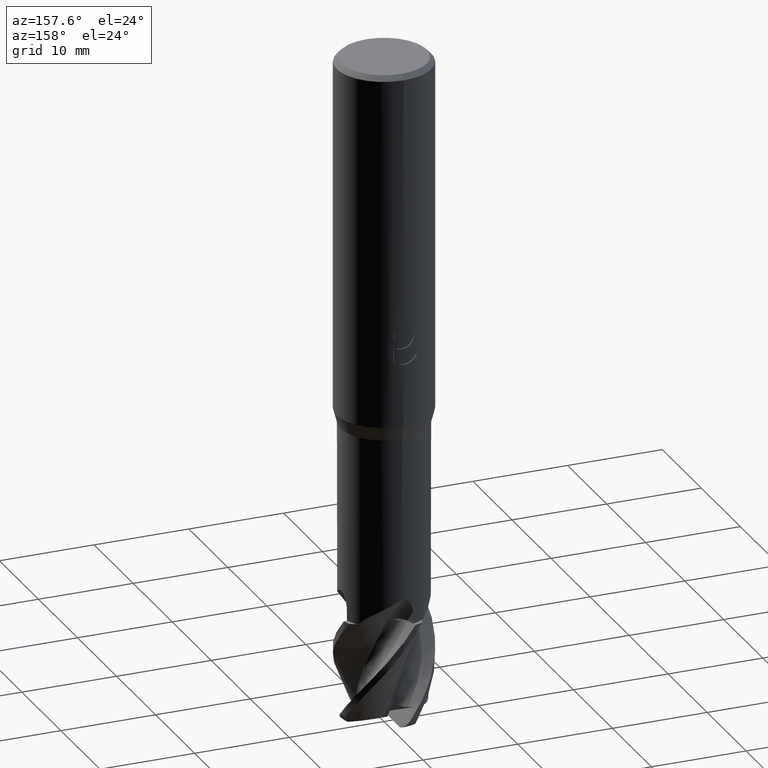
[diagram: clean part render]
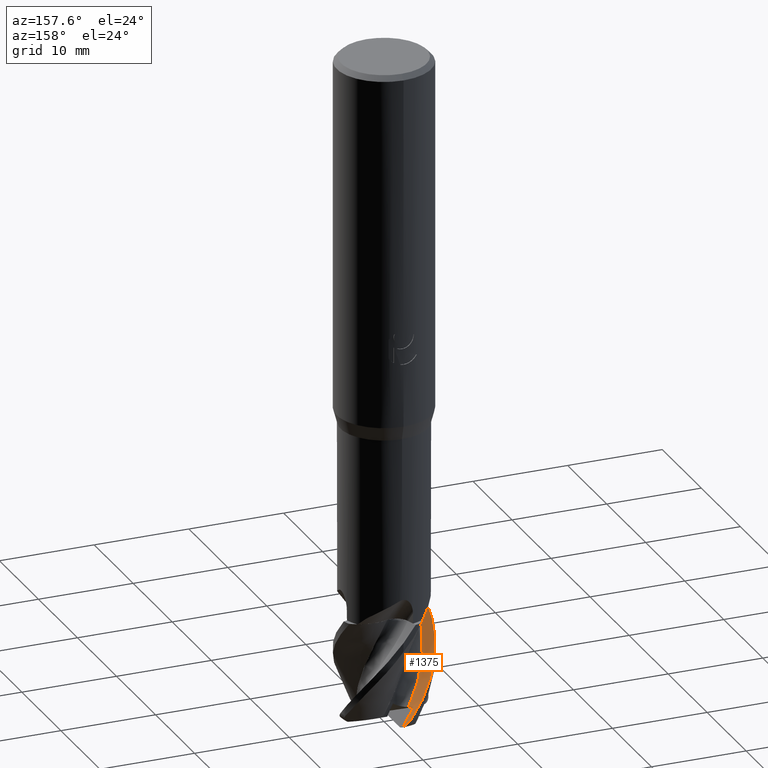
[diagram: same view with one face highlighted and labeled with its STEP entity id]
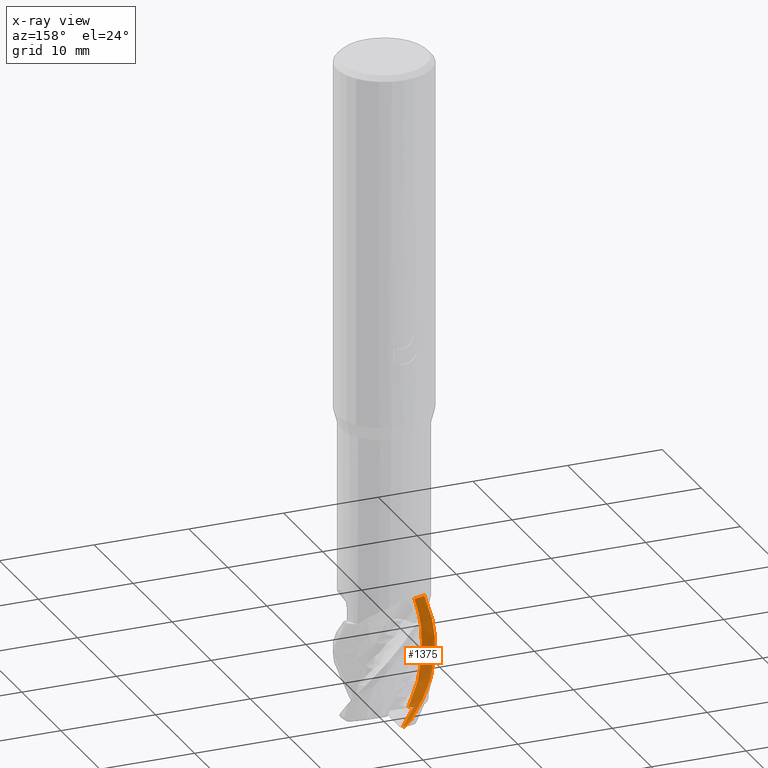
[diagram: x-ray of the same camera — body ghosted, the highlighted face saturated]
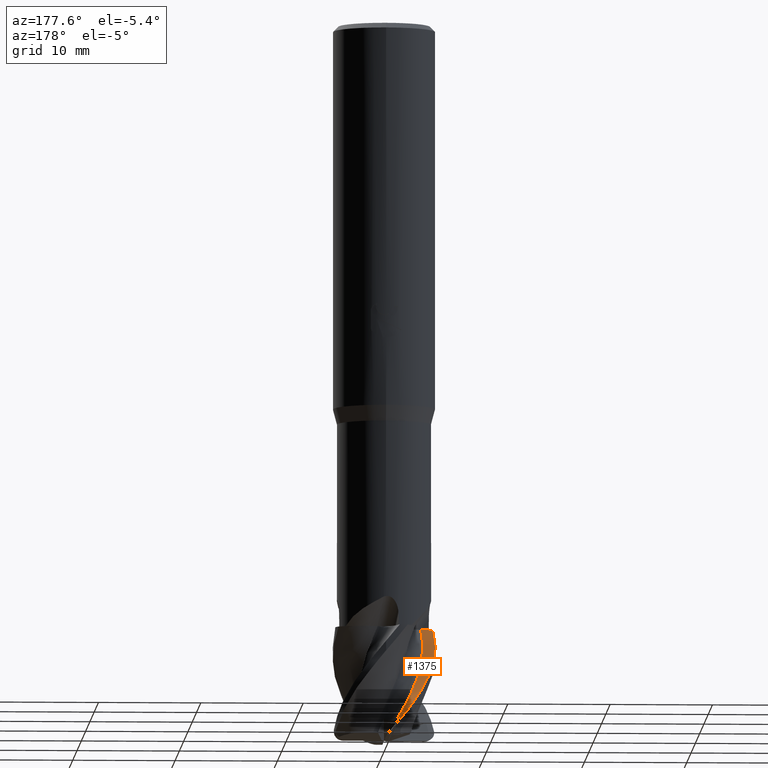
[diagram: same view with one face highlighted and labeled with its STEP entity id]
A machine part, auxiliary view. The second image highlights one B-rep face of the part: STEP entity #1375.
The next image is the same camera in x-ray: the body ghosted, the highlighted face saturated — about 0% of this face is hidden behind the body in this view.
A second angle (auxiliary view) of the same face is appended — the face is thin or edge-on in the first view.
In plain terms, the highlighted face is a freeform B-spline surface patch.
Its self-contained STEP definition (entity closure, byte-faithful):
#559=EDGE_CURVE('',#1419,#1235,#1543,.T.);
#575=VERTEX_POINT('',#1560);
#589=EDGE_CURVE('',#1253,#1343,#1576,.T.);
#831=EDGE_CURVE('',#1363,#575,#1843,.T.);
#879=EDGE_CURVE('',#1235,#1363,#1893,.T.);
#1041=EDGE_CURVE('',#1343,#1419,#2074,.T.);
#1235=VERTEX_POINT('',#2280);
#1253=VERTEX_POINT('',#2299);
#1343=VERTEX_POINT('',#2395);
#1363=VERTEX_POINT('',#2416);
#1375=ADVANCED_FACE('',(#2429),#2430,.T.);
#1409=EDGE_CURVE('',#575,#1253,#2466,.T.);
#1419=VERTEX_POINT('',#2478);
#1543=B_SPLINE_CURVE_WITH_KNOTS('',3,(#2727,#2728,#2729,#2730,#2731,#2732),.UNSPECIFIED.,.F.,.F.,(4,2,4),(0.0,0.751794072931689,1.5104230108436),.UNSPECIFIED.);
#1560=CARTESIAN_POINT('',(-4.81221548806411,-1.35704904348955,-59.0));
#1576=B_SPLINE_CURVE_WITH_KNOTS('',3,(#3035,#3036,#3037,#3038,#3039,#3040,#3041,#3042,#3043,#3044,#3045,#3046,#3047,#3048,#3049,#3050),.UNSPECIFIED.,.F.,.F.,(4,2,2,2,2,2,2,4),(0.0,0.0671660512695453,0.162370546002259,0.353470234615446,0.617416143831195,0.997652059389528,1.34689019427082,1.6848377944745),.UNSPECIFIED.);
#1843=B_SPLINE_CURVE_WITH_KNOTS('',3,(#4877,#4878,#4879,#4880,#4881,#4882),.UNSPECIFIED.,.F.,.F.,(4,2,4),(0.0,0.718749978449483,1.43749995690222),.UNSPECIFIED.);
#1893=B_SPLINE_CURVE_WITH_KNOTS('',3,(#5051,#5052,#5053,#5054,#5055,#5056,#5057,#5058,#5059,#5060,#5061,#5062,#5063,#5064,#5065,#5066,#5067,#5068,#5069,#5070,#5071,#5072,#5073,#5074,#5075,#5076,#5077,#5078,#5079,#5080,#5081,#5082,#5083,#5084,#5085,#5086,#5087,#5088,#5089,#5090),.UNSPECIFIED.,.F.,.F.,(4,1,2,2,1,2,1,1,2,1,1,2,1,1,1,2,1,1,2,1,1,2,1,1,1,2,1,1,4),(0.0,0.486072077387521,0.972144154775041,1.94428830955008,2.91643246432512,3.88857661910017,4.86072077387521,6.31893700603777,7.77715323820033,9.23536947036289,10.6935857025255,11.6657298573005,12.6378740120755,13.6100181668506,14.5821623216256,15.5543064764007,16.5264506311757,17.9846668633383,19.4428830955008,20.9010993276634,22.359315559826,23.331459714601,24.303603869376,25.2757480241511,26.2478921789261,27.2200363337012,28.1921804884762,29.6503967206388,31.1086129528013),.UNSPECIFIED.);
#2074=B_SPLINE_CURVE_WITH_KNOTS('',3,(#6422,#6423,#6424,#6425,#6426,#6427,#6428,#6429,#6430,#6431,#6432,#6433,#6434,#6435,#6436,#6437,#6438,#6439,#6440,#6441,#6442,#6443),.UNSPECIFIED.,.F.,.F.,(4,2,2,2,2,2,2,2,2,2,4),(0.0,0.392635130041156,0.729514629619427,1.04073542299758,1.50427848265847,1.95920149699613,2.41559836698189,3.21252357299799,3.52250130577971,4.19197207264999,5.8238102415896),.UNSPECIFIED.);
#2280=CARTESIAN_POINT('',(-1.09520121686868,3.60050851810042,-68.2262283134295));
#2299=CARTESIAN_POINT('',(-0.815956067990963,4.93297229823042,-69.0));
#2395=CARTESIAN_POINT('',(-0.123108119902427,4.57289036489368,-69.8184714646196));
#2416=CARTESIAN_POINT('',(-3.62420799166102,-1.01487390091683,-59.0));
#2429=FACE_OUTER_BOUND('',#8351,.T.);
#2430=B_SPLINE_SURFACE_WITH_KNOTS('',3,3,((#8352,#8353,#8354,#8355,#8356,#8357,#8358,#8359,#8360,#8361,#8362,#8363,#8364,#8365,#8366,#8367,#8368,#8369,#8370,#8371,#8372,#8373,#8374,#8375,#8376,#8377,#8378,#8379,#8380,#8381,#8382,#8383,#8384,#8385,#8386,#8387,#8388,#8389,#8390,#8391),(#8392,#8393,#8394,#8395,#8396,#8397,#8398,#8399,#8400,#8401,#8402,#8403,#8404,#8405,#8406,#8407,#8408,#8409,#8410,#8411,#8412,#8413,#8414,#8415,#8416,#8417,#8418,#8419,#8420,#8421,#8422,#8423,#8424,#8425,#8426,#8427,#8428,#8429,#8430,#8431),(#8432,#8433,#8434,#8435,#8436,#8437,#8438,#8439,#8440,#8441,#8442,#8443,#8444,#8445,#8446,#8447,#8448,#8449,#8450,#8451,#8452,#8453,#8454,#8455,#8456,#8457,#8458,#8459,#8460,#8461,#8462,#8463,#8464,#8465,#8466,#8467,#8468,#8469,#8470,#8471),(#8472,#8473,#8474,#8475,#8476,#8477,#8478,#8479,#8480,#8481,#8482,#8483,#8484,#8485,#8486,#8487,#8488,#8489,#8490,#8491,#8492,#8493,#8494,#8495,#8496,#8497,#8498,#8499,#8500,#8501,#8502,#8503,#8504,#8505,#8506,#8507,#8508,#8509,#8510,#8511)),.UNSPECIFIED.,.F.,.F.,.F.,(4,4),(4,1,2,2,1,2,1,1,2,1,1,2,1,1,1,2,1,1,2,1,1,2,1,1,1,2,1,1,4),(0.0,1.4375),(0.0,0.486072077387521,0.972144154775041,1.94428830955008,2.91643246432512,3.88857661910017,4.86072077387521,6.31893700603777,7.77715323820033,9.23536947036289,10.6935857025255,11.6657298573005,12.6378740120755,13.6100181668506,14.5821623216256,15.5543064764007,16.5264506311757,17.9846668633383,19.4428830955008,20.9010993276634,22.359315559826,23.331459714601,24.303603869376,25.2757480241511,26.2478921789261,27.2200363337012,28.1921804884762,29.6503967206388,31.1086129528013),.UNSPECIFIED.);
#2466=B_SPLINE_CURVE_WITH_KNOTS('',3,(#8642,#8643,#8644,#8645,#8646,#8647,#8648,#8649,#8650,#8651,#8652,#8653,#8654,#8655,#8656,#8657),.UNSPECIFIED.,.F.,.F.,(4,2,2,2,2,2,2,4),(0.0,2.08918083368579,3.472125765009,4.52503882656082,5.20180950697412,6.45962798724344,7.09419798797232,7.74034989056462),.UNSPECIFIED.);
#2478=CARTESIAN_POINT('',(-1.40208119094292,4.15151579690603,-68.0559665281804));
#2727=CARTESIAN_POINT('',(-1.83372258085381,4.86688129679418,-67.8590559295548));
#2728=CARTESIAN_POINT('',(-1.70365772834864,4.65947276021985,-67.9125741777255));
#2729=CARTESIAN_POINT('',(-1.57653859564185,4.45031451242847,-67.9694812878307));
#2730=CARTESIAN_POINT('',(-1.32989749919156,4.02858253436372,-68.0912526135801));
#2731=CARTESIAN_POINT('',(-1.20981511212483,3.81490138597409,-68.1564999603392));
#2732=CARTESIAN_POINT('',(-1.09520121692853,3.60050851808144,-68.2262283134866));
#3035=CARTESIAN_POINT('',(-0.816411568843245,4.93289678177411,-68.999453992404));
#3036=CARTESIAN_POINT('',(-0.802150490174869,4.93526650117915,-69.0165495832246));
#3037=CARTESIAN_POINT('',(-0.787814119449662,4.93714078266966,-69.033653130034));
#3038=CARTESIAN_POINT('',(-0.753029614041781,4.9404624697607,-69.0749853946924));
#3039=CARTESIAN_POINT('',(-0.732523584756293,4.94140551875136,-69.0992137794731));
#3040=CARTESIAN_POINT('',(-0.670720045563193,4.94117495250644,-69.1719320923907));
#3041=CARTESIAN_POINT('',(-0.629252257246854,4.93691233939706,-69.2203177866183));
#3042=CARTESIAN_POINT('',(-0.531283868387751,4.91664350857127,-69.3343107627327));
#3043=CARTESIAN_POINT('',(-0.474999903513409,4.89676207895779,-69.3995500626918));
#3044=CARTESIAN_POINT('',(-0.342764931162667,4.8274255457284,-69.5537140994057));
#3045=CARTESIAN_POINT('',(-0.269143259362154,4.76880399006796,-69.6404182602025));
#3046=CARTESIAN_POINT('',(-0.146511472595121,4.62114500598103,-69.7887357389997));
#3047=CARTESIAN_POINT('',(-0.0967796020426928,4.53583780069105,-69.8509251862515));
#3048=CARTESIAN_POINT('',(-0.0235127627432397,4.34177799707788,-69.9458419822675));
#3049=CARTESIAN_POINT('',(-0.000345314060312992,4.23688712957753,-69.9779295217924));
#3050=CARTESIAN_POINT('',(0.00972502810385703,4.12614972778561,-69.9920097552712));
#4877=CARTESIAN_POINT('',(-3.62420799163334,-1.01487390101293,-59.0));
#4878=CARTESIAN_POINT('',(-3.85443200048723,-1.0811843520464,-59.0));
#4879=CARTESIAN_POINT('',(-4.08465605878453,-1.14749463141694,-59.0));
#4880=CARTESIAN_POINT('',(-4.54510427426675,-1.28011484683049,-59.0));
#4881=CARTESIAN_POINT('',(-4.7753284314518,-1.34642478287352,-59.0));
#4882=CARTESIAN_POINT('',(-5.00555263808015,-1.41273454725165,-59.0));
#5051=CARTESIAN_POINT('',(3.75846504508571,-0.174203199938611,-80.0));
#5052=CARTESIAN_POINT('',(3.75828084396497,-0.194815828982336,-79.8385435911017));
#5053=CARTESIAN_POINT('',(3.76196984713355,-0.165571341920701,-79.5155947887541));
#5054=CARTESIAN_POINT('',(3.7666735664887,0.00715994400538414,-79.1926221376497));
#5055=CARTESIAN_POINT('',(3.75288079252065,0.373242750135397,-78.708257841377));
#5056=CARTESIAN_POINT('',(3.72163332523226,0.595886894987135,-78.3853736073002));
#5057=CARTESIAN_POINT('',(3.63332376225144,1.00197660502865,-77.7395577774699));
#5058=CARTESIAN_POINT('',(3.51319479512196,1.39449817376395,-77.0937365673818));
#5059=CARTESIAN_POINT('',(3.3309111892048,1.76383199632402,-76.4478933996483));
#5060=CARTESIAN_POINT('',(3.11507099365313,2.12199486650897,-75.8020494895554));
#5061=CARTESIAN_POINT('',(2.81546299580733,2.53554345025552,-74.9947648198802));
#5062=CARTESIAN_POINT('',(2.23301877828794,3.07370399785199,-73.7030881898479));
#5063=CARTESIAN_POINT('',(1.69677173642203,3.37451585109877,-72.7342983844305));
#5064=CARTESIAN_POINT('',(1.10349011943726,3.61204345334899,-71.7655583624836));
#5065=CARTESIAN_POINT('',(0.508402846864783,3.76483620152927,-70.7968546531817));
#5066=CARTESIAN_POINT('',(-0.288244513120189,3.77850799426797,-69.5051778586552));
#5067=CARTESIAN_POINT('',(-0.796842744180249,3.68429071257042,-68.697860988868));
#5068=CARTESIAN_POINT('',(-1.20642903519842,3.57105725562894,-68.0520249509301));
#5069=CARTESIAN_POINT('',(-1.59455920203675,3.42694477358397,-67.406207559231));
#5070=CARTESIAN_POINT('',(-2.11724226475429,3.13074313373759,-66.437471766184));
#5071=CARTESIAN_POINT('',(-2.58687566175257,2.75611336729584,-65.4687043346982));
#5072=CARTESIAN_POINT('',(-2.86507567900893,2.44954055121123,-64.8228526770956));
#5073=CARTESIAN_POINT('',(-3.12244677203907,2.11145446474027,-64.1770194526284));
#5074=CARTESIAN_POINT('',(-3.39925918896,1.67442103711186,-63.3697511381561));
#5075=CARTESIAN_POINT('',(-3.6835605775205,0.930038475036886,-62.0780979709974));
#5076=CARTESIAN_POINT('',(-3.76326416249981,0.321691571665687,-61.1093091759078));
#5077=CARTESIAN_POINT('',(-3.76356758007846,-0.315658776096099,-60.1405577615513));
#5078=CARTESIAN_POINT('',(-3.68486331972891,-0.924321232202322,-59.1718445364835));
#5079=CARTESIAN_POINT('',(-3.40184562993813,-1.66969704634569,-57.8801647859864));
#5080=CARTESIAN_POINT('',(-3.12548640299466,-2.10718969193942,-57.0728516559468));
#5081=CARTESIAN_POINT('',(-2.86838015791589,-2.44546642251084,-56.4270201653886));
#5082=CARTESIAN_POINT('',(-2.59069588735715,-2.7522208213772,-55.7812054403743));
#5083=CARTESIAN_POINT('',(-2.12200456786792,-3.12751070811321,-54.8124680501343));
#5084=CARTESIAN_POINT('',(-1.59970770766387,-3.42479560810431,-53.8436942758432));
#5085=CARTESIAN_POINT('',(-1.21097708700197,-3.56968096790445,-53.1978362961314));
#5086=CARTESIAN_POINT('',(-0.80017535485013,-3.68345829294497,-52.5519965372961));
#5087=CARTESIAN_POINT('',(-0.290242564565987,-3.77824449191857,-51.7447273087484));
#5088=CARTESIAN_POINT('',(0.504514457398097,-3.7651486711172,-50.453096128095));
#5089=CARTESIAN_POINT('',(1.09183690402776,-3.61542374616111,-49.4843328363915));
#5090=CARTESIAN_POINT('',(1.38324993206656,-3.50007952658442,-48.9999676653261));
#6422=CARTESIAN_POINT('',(-0.00576500567643763,5.09905035243371,-69.9789224974719));
#6423=CARTESIAN_POINT('',(-0.0131760867436232,4.96875631350061,-69.9690387340991));
#6424=CARTESIAN_POINT('',(-0.0226691296144208,4.87283857424517,-69.9561956254412));
#6425=CARTESIAN_POINT('',(-0.0463080655856725,4.73544046972513,-69.9239533874874));
#6426=CARTESIAN_POINT('',(-0.0599056897622719,4.68639370664801,-69.9053297526805));
#6427=CARTESIAN_POINT('',(-0.0934815930657045,4.61040523905726,-69.859227216948));
#6428=CARTESIAN_POINT('',(-0.11287022337485,4.58221654359397,-69.8325645996773));
#6429=CARTESIAN_POINT('',(-0.170151971269038,4.52462033403852,-69.7537264653086));
#6430=CARTESIAN_POINT('',(-0.214749741064667,4.49905889409404,-69.6922959285542));
#6431=CARTESIAN_POINT('',(-0.333273825069844,4.45377384213054,-69.5289783775392));
#6432=CARTESIAN_POINT('',(-0.40571500486099,4.43428454441782,-69.429138627936));
#6433=CARTESIAN_POINT('',(-0.582186153343769,4.39000605285017,-69.1859146509467));
#6434=CARTESIAN_POINT('',(-0.702100387210705,4.3612663103217,-69.0206376094949));
#6435=CARTESIAN_POINT('',(-1.03398825527642,4.27068298729967,-68.5632270524738));
#6436=CARTESIAN_POINT('',(-1.12415409449773,4.23529564973311,-68.4389875093934));
#6437=CARTESIAN_POINT('',(-1.31386447548262,4.17655633067287,-68.1775450424082));
#6438=CARTESIAN_POINT('',(-1.36839596393047,4.16086094770048,-68.102391392209));
#6439=CARTESIAN_POINT('',(-1.53576439660063,4.114308275841,-67.8717251037194));
#6440=CARTESIAN_POINT('',(-1.65328596350995,4.08397190921887,-67.7097514473234));
#6441=CARTESIAN_POINT('',(-2.10055664202938,3.96337435474074,-67.0933155589605));
#6442=CARTESIAN_POINT('',(-2.47243422205053,3.85525339563391,-66.5808079078443));
#6443=CARTESIAN_POINT('',(-2.88022848049288,3.67362354958079,-66.0189636168904));
#8351=EDGE_LOOP('',(#9945,#9946,#9947,#9948,#9949,#9950));
#8352=CARTESIAN_POINT('',(3.75846504509034,-0.174203199838719,-80.0));
#8353=CARTESIAN_POINT('',(3.75828084397247,-0.194815828882577,-79.8385435911017));
#8354=CARTESIAN_POINT('',(3.76196984713581,-0.16557134182058,-79.5155947887541));
#8355=CARTESIAN_POINT('',(3.76667356648719,0.00715994410524393,-79.1926221376497));
#8356=CARTESIAN_POINT('',(3.7528807925105,0.373242750235387,-78.7082578413771));
#8357=CARTESIAN_POINT('',(3.72163332521614,0.595886895086581,-78.3853736073002));
#8358=CARTESIAN_POINT('',(3.63332376222362,1.00197660512431,-77.7395577774699));
#8359=CARTESIAN_POINT('',(3.51319479508455,1.39449817385675,-77.0937365673818));
#8360=CARTESIAN_POINT('',(3.33091118915707,1.7638319964134,-76.4478933996483));
#8361=CARTESIAN_POINT('',(3.11507099359638,2.12199486659013,-75.8020494895554));
#8362=CARTESIAN_POINT('',(2.81546299573929,2.53554345033084,-74.9947648198817));
#8363=CARTESIAN_POINT('',(2.23301877820793,3.07370399790857,-73.7030881898479));
#8364=CARTESIAN_POINT('',(1.69677173633276,3.37451585114806,-72.7342983844305));
#8365=CARTESIAN_POINT('',(1.10349011934032,3.6120434533727,-71.7655583624837));
#8366=CARTESIAN_POINT('',(0.508402846765522,3.76483620153985,-70.7968546531773));
#8367=CARTESIAN_POINT('',(-0.288244513220249,3.77850799426012,-69.5051778586552));
#8368=CARTESIAN_POINT('',(-0.796842744278461,3.68429071254605,-68.697860988868));
#8369=CARTESIAN_POINT('',(-1.20642903529259,3.57105725559862,-68.0520249509301));
#8370=CARTESIAN_POINT('',(-1.59455920212795,3.42694477353899,-67.4062075592281));
#8371=CARTESIAN_POINT('',(-2.11724226483658,3.13074313368232,-66.4374717661869));
#8372=CARTESIAN_POINT('',(-2.58687566182456,2.75611336722595,-65.4687043346982));
#8373=CARTESIAN_POINT('',(-2.86507567907441,2.44954055113725,-64.8228526771014));
#8374=CARTESIAN_POINT('',(-3.12244677209358,2.11145446465426,-64.1770194526226));
#8375=CARTESIAN_POINT('',(-3.39925918900721,1.67442103702348,-63.3697511381604));
#8376=CARTESIAN_POINT('',(-3.68356057754395,0.930038474937486,-62.0780979709888));
#8377=CARTESIAN_POINT('',(-3.76326416251208,0.321691571566154,-61.1093091759078));
#8378=CARTESIAN_POINT('',(-3.76356758006484,-0.315658776196562,-60.1405577615513));
#8379=CARTESIAN_POINT('',(-3.68486331970501,-0.924321232298672,-59.1718445364921));
#8380=CARTESIAN_POINT('',(-3.40184562989222,-1.66969704643482,-57.880164785972));
#8381=CARTESIAN_POINT('',(-3.12548640293953,-2.10718969202264,-57.0728516559584));
#8382=CARTESIAN_POINT('',(-2.86838015784886,-2.44546642258597,-56.4270201653771));
#8383=CARTESIAN_POINT('',(-2.59069588728419,-2.75222082144523,-55.7812054403743));
#8384=CARTESIAN_POINT('',(-2.12200456778515,-3.1275107081701,-54.8124680501401));
#8385=CARTESIAN_POINT('',(-1.59970770757251,-3.42479560814656,-53.843694275849));
#8386=CARTESIAN_POINT('',(-1.21097708690711,-3.56968096793614,-53.1978362961315));
#8387=CARTESIAN_POINT('',(-0.800175354751865,-3.68345829296529,-52.5519965372962));
#8388=CARTESIAN_POINT('',(-0.290242564466049,-3.77824449192404,-51.7447273087484));
#8389=CARTESIAN_POINT('',(0.504514457497456,-3.76514867110488,-50.453096128095));
#8390=CARTESIAN_POINT('',(1.09183690412458,-3.61542374612813,-49.4843328363915));
#8391=CARTESIAN_POINT('',(1.38324993215926,-3.50007952654693,-48.9999676653261));
#8392=CARTESIAN_POINT('',(4.23711784706853,-0.196388546440662,-80.0));
#8393=CARTESIAN_POINT('',(4.23689693071939,-0.217793015271472,-79.8385434112798));
#8394=CARTESIAN_POINT('',(4.24097623200749,-0.182210614560506,-79.5155909077038));
#8395=CARTESIAN_POINT('',(4.24604753622213,0.0129748125403123,-79.1926123929781));
#8396=CARTESIAN_POINT('',(4.23024585986805,0.424745262034449,-78.708249671467));
#8397=CARTESIAN_POINT('',(4.19489150332128,0.675413845647528,-78.3853689607953));
#8398=CARTESIAN_POINT('',(4.09498088080885,1.13301120315102,-77.7395549858565));
#8399=CARTESIAN_POINT('',(3.95918897967333,1.575380477326,-77.0937351567108));
#8400=CARTESIAN_POINT('',(3.75335539074992,1.99153020743303,-76.4478910095793));
#8401=CARTESIAN_POINT('',(3.50977809338173,2.39496274029043,-75.8020460099961));
#8402=CARTESIAN_POINT('',(3.17162943995577,2.86089583448422,-74.9947622227238));
#8403=CARTESIAN_POINT('',(2.51417588275508,3.46728775813331,-73.703084542261));
#8404=CARTESIAN_POINT('',(1.90934199650551,3.80585443834333,-72.7342903037997));
#8405=CARTESIAN_POINT('',(1.24069854623037,4.07292549339981,-71.7655514402981));
#8406=CARTESIAN_POINT('',(0.569683068778965,4.24463925218252,-70.7968530225347));
#8407=CARTESIAN_POINT('',(-0.328787902070278,4.2592555947592,-69.5051751530881));
#8408=CARTESIAN_POINT('',(-0.901959203934158,4.15256019233341,-68.6978555414452));
#8409=CARTESIAN_POINT('',(-1.36333977723918,4.0246036594246,-68.052019227687));
#8410=CARTESIAN_POINT('',(-1.80068372492346,3.86181242767673,-67.4062036968905));
#8411=CARTESIAN_POINT('',(-2.38979795236565,3.52729257385107,-66.4374695367557));
#8412=CARTESIAN_POINT('',(-2.91900564955897,3.10437541237502,-65.4687002418721));
#8413=CARTESIAN_POINT('',(-3.23227507711429,2.75855541024194,-64.8228465356009));
#8414=CARTESIAN_POINT('',(-3.52194702847926,2.37739561911068,-64.1770134214503));
#8415=CARTESIAN_POINT('',(-3.83355425163418,1.88454341328809,-63.3697477303954));
#8416=CARTESIAN_POINT('',(-4.15345750799292,1.04475362277497,-62.078096240015));
#8417=CARTESIAN_POINT('',(-4.24269276214609,0.358836556182726,-61.1093030729608));
#8418=CARTESIAN_POINT('',(-4.24245049318529,-0.359270766187467,-60.1405516586043));
#8419=CARTESIAN_POINT('',(-4.15316758838559,-1.04539170112553,-59.1718425208844));
#8420=CARTESIAN_POINT('',(-3.83323414197987,-1.88572913338312,-57.8801614819901));
#8421=CARTESIAN_POINT('',(-3.5213110910708,-2.3785721103074,-57.0728459370522));
#8422=CARTESIAN_POINT('',(-3.23131663834916,-2.75947640827662,-56.4270147774553));
#8423=CARTESIAN_POINT('',(-2.91804292871627,-3.10497936227078,-55.7812021773007));
#8424=CARTESIAN_POINT('',(-2.38915242503722,-3.52772230530912,-54.8124663334913));
#8425=CARTESIAN_POINT('',(-1.79989269648105,-3.86243316014844,-53.8436899435083));
#8426=CARTESIAN_POINT('',(-1.36161409064371,-4.02535423517262,-53.1978291349811));
#8427=CARTESIAN_POINT('',(-0.898679507110052,-4.15316681823076,-52.5519887141771));
#8428=CARTESIAN_POINT('',(-0.323852273470528,-4.2595356095244,-51.7447218548197));
#8429=CARTESIAN_POINT('',(0.572480591073314,-4.24399098795883,-50.4530942780159));
#8430=CARTESIAN_POINT('',(1.23457296609401,-4.0745644910643,-49.4843287050234));
#8431=CARTESIAN_POINT('',(1.56287673483644,-3.94430346353366,-48.9999640304345));
#8432=CARTESIAN_POINT('',(4.71577064904369,-0.218573893042266,-80.0));
#8433=CARTESIAN_POINT('',(4.71551305070448,-0.240770202869072,-79.8385432314612));
#8434=CARTESIAN_POINT('',(4.71998260087312,-0.198849885567519,-79.5155870257968));
#8435=CARTESIAN_POINT('',(4.72542150472428,0.0187896787202619,-79.1926026500171));
#8436=CARTESIAN_POINT('',(4.7076109297269,0.476247778339502,-78.7082414981376));
#8437=CARTESIAN_POINT('',(4.66814961834947,0.754940795732625,-78.3853643137676));
#8438=CARTESIAN_POINT('',(4.55663806245962,1.26404580165561,-77.7395521947636));
#8439=CARTESIAN_POINT('',(4.40518312073783,1.75626277116104,-77.0937337469736));
#8440=CARTESIAN_POINT('',(4.1757996162975,2.21922843725227,-76.447888617119));
#8441=CARTESIAN_POINT('',(3.90448516922272,2.6679305952055,-75.8020425328263));
#8442=CARTESIAN_POINT('',(3.52779590226391,3.18624823253395,-74.9947596297861));
#8443=CARTESIAN_POINT('',(2.79533300854018,3.86087153072606,-73.7030809080094));
#8444=CARTESIAN_POINT('',(2.1219122523093,4.23719300678502,-72.7342822082122));
#8445=CARTESIAN_POINT('',(1.37790697748536,4.53380755216227,-71.7655445330654));
#8446=CARTESIAN_POINT('',(0.630963292461658,4.72444226825171,-70.7968513478725));
#8447=CARTESIAN_POINT('',(-0.369331290993843,4.7400032004646,-69.5051724831968));
#8448=CARTESIAN_POINT('',(-1.00707566341967,4.62082965840991,-68.6978500620949));
#8449=CARTESIAN_POINT('',(-1.52025051935779,4.47815007694729,-68.0520135363762));
#8450=CARTESIAN_POINT('',(-2.0068082457703,4.29668006024405,-67.4061998167019));
#8451=CARTESIAN_POINT('',(-2.6623536355913,3.92384201842457,-66.437467344654));
#8452=CARTESIAN_POINT('',(-3.25113564434639,3.45263745691584,-65.4686961256812));
#8453=CARTESIAN_POINT('',(-3.59947446480024,3.06757029996033,-64.8228404445839));
#8454=CARTESIAN_POINT('',(-3.92144729521872,2.64333674296205,-64.1770073398159));
#8455=CARTESIAN_POINT('',(-4.26784931040236,2.09466581602282,-63.3697443778828));
#8456=CARTESIAN_POINT('',(-4.62335447248502,1.15946876216993,-62.0780945030867));
#8457=CARTESIAN_POINT('',(-4.72212132411979,0.395981540794911,-61.1092970323343));
#8458=CARTESIAN_POINT('',(-4.72133344395434,-0.402882756176963,-60.140545493355));
#8459=CARTESIAN_POINT('',(-4.62147186832592,-1.16646215553436,-59.1718405900653));
#8460=CARTESIAN_POINT('',(-4.2646226685472,-2.10176121397393,-57.8801580962191));
#8461=CARTESIAN_POINT('',(-3.9171357705054,-2.64995453479318,-57.0728402542695));
#8462=CARTESIAN_POINT('',(-3.59425312754518,-3.0734863877653,-56.4270093534199));
#8463=CARTESIAN_POINT('',(-3.24538996473289,-3.45773790539061,-55.7811989077469));
#8464=CARTESIAN_POINT('',(-2.6563002899379,-3.92793392267732,-54.81246454996));
#8465=CARTESIAN_POINT('',(-2.00007768842059,-4.30007072570156,-53.8436855958414));
#8466=CARTESIAN_POINT('',(-1.51225109044746,-4.48102747689741,-53.197822053545));
#8467=CARTESIAN_POINT('',(-0.997183663399509,-4.62287536900652,-52.5519808113165));
#8468=CARTESIAN_POINT('',(-0.357461977693494,-4.7408266929712,-51.7447164584148));
#8469=CARTESIAN_POINT('',(0.640446713561176,-4.7228332994552,-50.4530923974683));
#8470=CARTESIAN_POINT('',(1.3773090497268,-4.53370523346188,-49.484324481425));
#8471=CARTESIAN_POINT('',(1.74250353750822,-4.38852740051993,-48.9999603955624));
#8472=CARTESIAN_POINT('',(5.19442345102187,-0.240759239644209,-80.0));
#8473=CARTESIAN_POINT('',(5.19412914434949,-0.263747389361975,-79.8385430516393));
#8474=CARTESIAN_POINT('',(5.19898898227581,-0.215489158685948,-79.5155831447465));
#8475=CARTESIAN_POINT('',(5.20479547449912,0.0246045480163443,-79.1925929053455));
#8476=CARTESIAN_POINT('',(5.18497599700464,0.527750288416537,-78.7082333282275));
#8477=CARTESIAN_POINT('',(5.14140778267839,0.834467746932095,-78.3853596672626));
#8478=CARTESIAN_POINT('',(5.01829519482108,1.3950803990438,-77.7395494031502));
#8479=CARTESIAN_POINT('',(4.85117730861103,1.9371450710266,-77.0937323363025));
#8480=CARTESIAN_POINT('',(4.59824379754527,2.44692665611779,-76.44788622705));
#8481=CARTESIAN_POINT('',(4.29919228935316,2.94089846105991,-75.802039053267));
#8482=CARTESIAN_POINT('',(3.88396233170048,3.51160063290391,-74.9947570326282));
#8483=CARTESIAN_POINT('',(3.07649013657417,4.25445529503938,-73.7030772604224));
#8484=CARTESIAN_POINT('',(2.33448251764814,4.66853159374085,-72.7342741275814));
#8485=CARTESIAN_POINT('',(1.51511539920932,4.99468959242883,-71.7655376108798));
#8486=CARTESIAN_POINT('',(0.692243520453816,5.20424530826291,-70.7968496965434));
#8487=CARTESIAN_POINT('',(-0.409874674997049,5.22075079383612,-69.5051697914207));
#8488=CARTESIAN_POINT('',(-1.11219212996348,5.08909913851653,-68.6978446146721));
#8489=CARTESIAN_POINT('',(-1.67716125441627,4.93169648045401,-68.0520078131331));
#8490=CARTESIAN_POINT('',(-2.21293277545392,4.73154771470105,-67.4061959405733));
#8491=CARTESIAN_POINT('',(-2.93490934643062,4.32039147693101,-66.4374651428049));
#8492=CARTESIAN_POINT('',(-3.58326562206789,3.80089949469791,-65.4686920328551));
#8493=CARTESIAN_POINT('',(-3.96667387597782,3.37658517347978,-64.8228343306654));
#8494=CARTESIAN_POINT('',(-4.3209475384667,2.90927788300373,-64.1770012810615));
#8495=CARTESIAN_POINT('',(-4.70214438985054,2.30478820169573,-63.3697410183863));
#8496=CARTESIAN_POINT('',(-5.09325139257189,1.27418391017429,-62.0780926893669));
#8497=CARTESIAN_POINT('',(-5.20154994423856,0.433126530243829,-61.1092910121334));
#8498=CARTESIAN_POINT('',(-5.20021633659004,-0.446494751000214,-60.1405393076619));
#8499=CARTESIAN_POINT('',(-5.08977615241496,-1.2875326217056,-59.1718386572037));
#8500=CARTESIAN_POINT('',(-4.69601117991651,-2.31779328542398,-57.8801547508642));
#8501=CARTESIAN_POINT('',(-4.31296045959445,-2.92133697374227,-57.0728345905273));
#8502=CARTESIAN_POINT('',(-3.95718960708771,-3.38749635279162,-56.427003910334));
#8503=CARTESIAN_POINT('',(-3.57273700256128,-3.81049644293175,-55.7811956722553));
#8504=CARTESIAN_POINT('',(-2.92344815143218,-4.328145536877,-54.8124628333112));
#8505=CARTESIAN_POINT('',(-2.20026268313374,-4.73770829124021,-53.8436812359187));
#8506=CARTESIAN_POINT('',(-1.66288809074001,-4.93670074429352,-53.1978149475587));
#8507=CARTESIAN_POINT('',(-1.09568781920175,-5.09258389411236,-52.5519729330333));
#8508=CARTESIAN_POINT('',(-0.39107168583696,-5.22211781061147,-51.7447110458592));
#8509=CARTESIAN_POINT('',(0.708412843356762,-5.20167564201985,-50.4530905473892));
#8510=CARTESIAN_POINT('',(1.5200451173412,-4.99284596830532,-49.4843203500568));
#8511=CARTESIAN_POINT('',(1.9221303401854,-4.83275133750666,-48.9999567606707));
#8642=CARTESIAN_POINT('',(-4.81221548806411,-1.35704904348956,-59.0));
#8643=CARTESIAN_POINT('',(-4.93234331637918,-0.931084988745599,-59.5376690345281));
#8644=CARTESIAN_POINT('',(-4.99754822622687,-0.483524639511271,-60.0764768357554));
#8645=CARTESIAN_POINT('',(-5.00137885750754,0.278389801180092,-60.9503353398124));
#8646=CARTESIAN_POINT('',(-4.97845010861479,0.763486860246345,-61.5141297216166));
#8647=CARTESIAN_POINT('',(-4.69011681479656,1.79328316288786,-62.8139744011941));
#8648=CARTESIAN_POINT('',(-4.50307020584333,2.22349809297931,-63.3833436774924));
#8649=CARTESIAN_POINT('',(-4.09663251160984,2.88251791867425,-64.2962340594768));
#8650=CARTESIAN_POINT('',(-3.91861924469979,3.12014102983145,-64.6305183565682));
#8651=CARTESIAN_POINT('',(-3.34084661094276,3.76214823291446,-65.6452303807253));
#8652=CARTESIAN_POINT('',(-2.90125728560393,4.10922936202934,-66.3261777939119));
#8653=CARTESIAN_POINT('',(-2.17610985432319,4.51016428240324,-67.3290479753305));
#8654=CARTESIAN_POINT('',(-1.91965580725668,4.62550544802619,-67.6647641756234));
#8655=CARTESIAN_POINT('',(-1.37913891666725,4.81470535176725,-68.3340076813682));
#8656=CARTESIAN_POINT('',(-1.10386481944157,4.88534621531478,-68.6549015549429));
#8657=CARTESIAN_POINT('',(-0.815956067990954,4.93297229823042,-69.0));
#9945=ORIENTED_EDGE('',*,*,#559,.F.);
#9946=ORIENTED_EDGE('',*,*,#1041,.F.);
#9947=ORIENTED_EDGE('',*,*,#589,.F.);
#9948=ORIENTED_EDGE('',*,*,#1409,.F.);
#9949=ORIENTED_EDGE('',*,*,#831,.F.);
#9950=ORIENTED_EDGE('',*,*,#879,.F.);